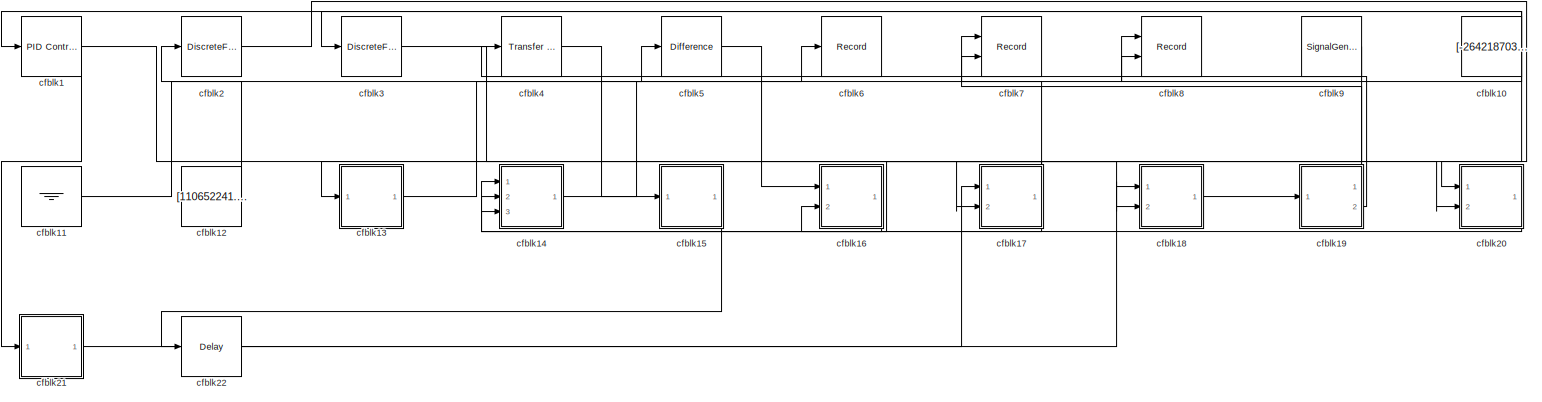
[diagram: root canvas - part 1/1, most of the canvas]
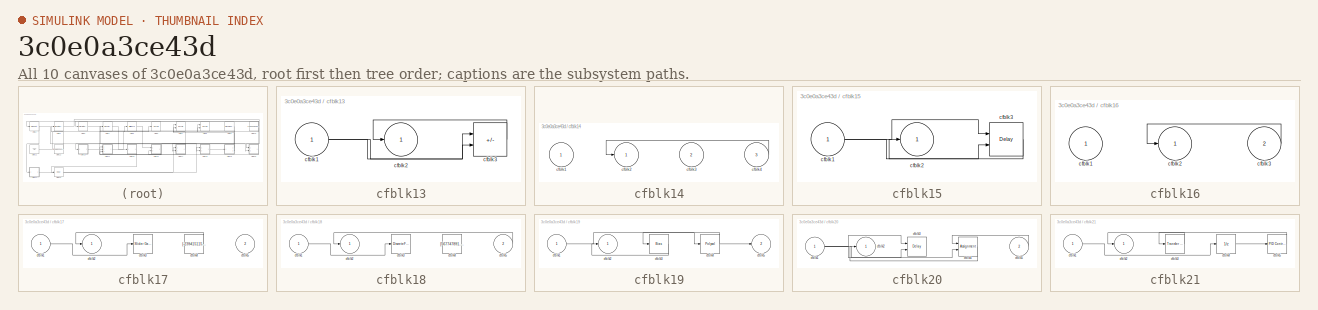
[diagram: thumbnail index - all 10 canvases of the model, root first then tree order]
MODEL slx_3c0e0a3ce43d
KIND model
CONFIG AbsTol = auto
CONFIG EnableMultiTasking = off
CONFIG FixedStep = auto
CONFIG MaxStep = auto
CONFIG MinStep = auto
CONFIG RelTol = 1e-3
CONFIG SampleTimeConstraint = Unconstrained
CONFIG SolverName = VariableStepAuto
CONFIG StartTime = 0.0
CONFIG StopTime = 10.0
BLOCK [Reference] cfblk1  REF=slpidlib/PID Controller
  Ports = [1, 1]
  SourceBlock = slpidlib/PID Controller
  SourceProductBaseCode = SL
  SourceType = PID 1dof
BLOCK [Constant] cfblk10
  SampleTime = 1
  Value = [-264218703.536812]
BLOCK [Ground] cfblk11
BLOCK [Constant] cfblk12
  SampleTime = 1
  Value = [110652241.129166]
BLOCK [SubSystem] cfblk13
  Ports = [1, 1]
  RequestExecContextInheritance = off
BLOCK [Inport] cfblk13/cfblk1
BLOCK [Outport] cfblk13/cfblk2
BLOCK [Sum] cfblk13/cfblk3
  IconShape = rectangular
  Inputs = +-
  Ports = [2, 1]
BLOCK [SubSystem] cfblk14
  Ports = [3, 1]
  RequestExecContextInheritance = off
BLOCK [Inport] cfblk14/cfblk1
BLOCK [Outport] cfblk14/cfblk2
BLOCK [Inport] cfblk14/cfblk3
  Port = 2
BLOCK [Inport] cfblk14/cfblk4
  Port = 3
BLOCK [SubSystem] cfblk15
  Ports = [1, 1]
  RequestExecContextInheritance = off
BLOCK [Inport] cfblk15/cfblk1
BLOCK [Outport] cfblk15/cfblk2
BLOCK [Delay] cfblk15/cfblk3
  InputPortMap = u0,e6
  Ports = [2, 1]
  SampleTime = 1
  ShowEnablePort = on
BLOCK [SubSystem] cfblk16
  Ports = [2, 1]
  RequestExecContextInheritance = off
BLOCK [Inport] cfblk16/cfblk1
BLOCK [Outport] cfblk16/cfblk2
BLOCK [Inport] cfblk16/cfblk3
  Port = 2
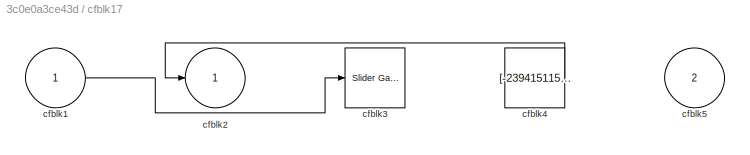
BLOCK [SubSystem] cfblk17
  Ports = [2, 1]
  RequestExecContextInheritance = off
BLOCK [Inport] cfblk17/cfblk1
BLOCK [Outport] cfblk17/cfblk2
BLOCK [Reference] cfblk17/cfblk3  REF=simulink/Math
Operations/Slider
Gain
  Ports = [1, 1]
  SourceBlock = simulink/Math\nOperations/Slider\nGain
  SourceProductBaseCode = SL
  SourceType = Slider Gain
BLOCK [Constant] cfblk17/cfblk4
  SampleTime = 1
  Value = [-239415115.744083]
BLOCK [Inport] cfblk17/cfblk5
  Port = 2
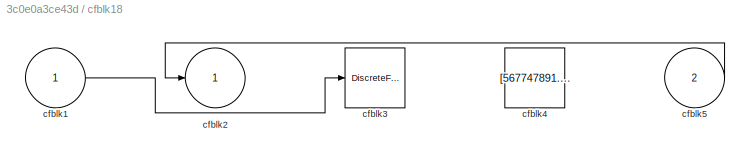
BLOCK [SubSystem] cfblk18
  Ports = [2, 1]
  RequestExecContextInheritance = off
BLOCK [Inport] cfblk18/cfblk1
BLOCK [Outport] cfblk18/cfblk2
BLOCK [DiscreteFir] cfblk18/cfblk3
  InputPortMap = u0
  OutputPortMap = o0
  Ports = [1, 1]
  SampleTime = 1
BLOCK [Constant] cfblk18/cfblk4
  SampleTime = 1
  Value = [567747891.881071]
BLOCK [Inport] cfblk18/cfblk5
  Port = 2
BLOCK [SubSystem] cfblk19
  Ports = [1, 2]
  RequestExecContextInheritance = off
BLOCK [Inport] cfblk19/cfblk1
BLOCK [Outport] cfblk19/cfblk2
BLOCK [Bias] cfblk19/cfblk3
  Bias = [377016640.359802]
  SaturateOnIntegerOverflow = off
BLOCK [Polyval] cfblk19/cfblk4
  Coefs = [ +2.081618890e-019, -1.441693666e-014, +4.719686976e-010, -8.536869453e-006, +1.621573104e-001, -8.087801117e+001 ]
BLOCK [Outport] cfblk19/cfblk5
  Port = 2
BLOCK [DiscreteFilter] cfblk2
  InputPortMap = u0
  Ports = [1, 1]
  SampleTime = 1
BLOCK [SubSystem] cfblk20
  Ports = [2, 1]
  RequestExecContextInheritance = off
BLOCK [Inport] cfblk20/cfblk1
BLOCK [Outport] cfblk20/cfblk2
BLOCK [Delay] cfblk20/cfblk3
  InputPortMap = u0,e6
  Ports = [2, 1]
  SampleTime = 1
  ShowEnablePort = on
BLOCK [Assignment] cfblk20/cfblk4
  DiagnosticForDimensions = Warning
  IndexOptions = Index vector (dialog)
  Indices = 1
  OutputSizes = 1
  Ports = [2, 1]
BLOCK [Inport] cfblk20/cfblk5
  Port = 2
BLOCK [SubSystem] cfblk21
  Ports = [1, 1]
  RequestExecContextInheritance = off
BLOCK [Inport] cfblk21/cfblk1
BLOCK [Outport] cfblk21/cfblk2
BLOCK [Reference] cfblk21/cfblk3  REF=simulink/Discrete/Transfer Fcn
Real Zero
  Ports = [1, 1]
  SourceBlock = simulink/Discrete/Transfer Fcn\nReal Zero
  SourceProductBaseCode = SL
  SourceType = Transfer Fcn Real Zero
BLOCK [UnitDelay] cfblk21/cfblk4
  HasFrameUpgradeWarning = on
BLOCK [Reference] cfblk21/cfblk5  REF=slpidlib/PID Controller
  Ports = [1, 1]
  SourceBlock = slpidlib/PID Controller
  SourceProductBaseCode = SL
  SourceType = PID 1dof
BLOCK [Delay] cfblk22
  InputPortMap = u0
  Ports = [1, 1]
  SampleTime = 1
BLOCK [DiscreteFir] cfblk3
  InputPortMap = u0
  OutputPortMap = o0
  Ports = [1, 1]
  SampleTime = 1
BLOCK [Reference] cfblk4  REF=simulink/Discrete/Transfer Fcn
First Order
  Ports = [1, 1]
  SourceBlock = simulink/Discrete/Transfer Fcn\nFirst Order
  SourceProductBaseCode = SL
  SourceType = First Order Transfer Fcn
BLOCK [Reference] cfblk5  REF=simulink/Discrete/Difference
  Ports = [1, 1]
  SourceBlock = simulink/Discrete/Difference
  SourceProductBaseCode = SL
  SourceType = Difference
BLOCK [Record] cfblk6
  FileSettingsInternal = {"entries":[{"content":{"excelSettings":{"content":{},"type":"Streamout.ExcelSettings"}},"type":"Streamout.FileSettingStorage","uuid":"0ebc6f11-7c4c-42d4-a33b-32ea3813df65"}],"packageUris":["http://schema.mathworks.com/mf0/streamout_blocks/R2020a"],"version":"1.0"}
  Ports = [1]
  SignalsInternal = {"entries":[{"content":{"signals":[{"content":{"blockPath":["sampleModel177/cfblk6"],"channel":[],"dimensions":[1],"domain":"sampleModel177/cfblk6","lineColor":"#64d413","plots":[1],"port":1,"sid":[""],"signalID":6591,"signalName":"cfblk13"},"type":"RecordBlkView.Signal","uuid":"74cd25fa-234e-4c83-8681-648e250d4b62"}]},"type":"RecordBlkView.InputSignals","uuid":"8dd71eb6-9d43-4b10-9631-c5556753376...<+95ch>
  VisualizationBindings = {"sparklinesplugin":{"info":[{"bindingParametersList":[],"subplotID":1}]}}
BLOCK [Record] cfblk7
  CompatibilityTag = XY
  FileSettingsInternal = {"entries":[{"content":{"excelSettings":{"content":{},"type":"Streamout.ExcelSettings"}},"type":"Streamout.FileSettingStorage","uuid":"c779718b-8efb-43b8-aa6c-1f9dd330889a"}],"packageUris":["http://schema.mathworks.com/mf0/streamout_blocks/R2020a"],"version":"1.0"}
  Layout = [1 1]
  Ports = [2]
  SignalsInternal = {"entries":[{"content":{"signals":[{"content":{"blockPath":["sampleModel177/cfblk7"],"channel":[],"dimensions":[1],"domain":"sampleModel177/cfblk7","lineColor":"#a2142f","plots":[1],"port":1,"sid":[""],"signalID":6595,"signalName":"cfblk19:1"},"type":"RecordBlkView.Signal","uuid":"56649da3-ccc1-47a4-a2f4-0e88634361af"},{"content":{"blockPath":["sampleModel177/cfblk7"],"channel":[],"dimensions":[1]...<+381ch>
  VisualizationBindings = {"xyplotplugin":{"info":[{"series":[{"bindingParametersList":[{"parameter":"X-Axis","signalID":6595,"signalName":"cfblk19:1"},{"parameter":"Y-Axis","signalID":6599,"signalName":"cfblk17"}],"seriesID":63374}],"subplotID":1}]}}
BLOCK [Record] cfblk8
  CompatibilityTag = XY
  FileSettingsInternal = {"entries":[{"content":{"excelSettings":{"content":{},"type":"Streamout.ExcelSettings"}},"type":"Streamout.FileSettingStorage","uuid":"5b5474de-6a5c-4531-8fda-7801034ded8d"}],"packageUris":["http://schema.mathworks.com/mf0/streamout_blocks/R2020a"],"version":"1.0"}
  Layout = [1 1]
  Ports = [2]
  SignalsInternal = {"entries":[{"content":{"signals":[{"content":{"blockPath":["sampleModel177/cfblk8"],"channel":[],"dimensions":[1],"domain":"sampleModel177/cfblk8","lineColor":"#a2142f","plots":[1],"port":1,"sid":[""],"signalID":6603,"signalName":"cfblk14"},"type":"RecordBlkView.Signal","uuid":"57d078b6-0b98-4c03-9e4f-bcd5c5fff5f0"},{"content":{"blockPath":["sampleModel177/cfblk8"],"channel":[],"dimensions":[1],"...<+379ch>
  VisualizationBindings = {"xyplotplugin":{"info":[{"series":[{"bindingParametersList":[{"parameter":"X-Axis","signalID":6603,"signalName":"cfblk14"},{"parameter":"Y-Axis","signalID":6607,"signalName":"cfblk10"}],"seriesID":1132}],"subplotID":1}]}}
BLOCK [SignalGenerator] cfblk9
  Amplitude = [256340039.339613]
  Ports = [0, 1]
NET cfblk10:1 -> cfblk17:2, cfblk1:1, cfblk3:1, cfblk8:2
LINE cfblk11:1 -> cfblk5:1
LINE cfblk12:1 -> cfblk2:1
NET cfblk13/cfblk1:1 -> cfblk13/cfblk3:1, cfblk13/cfblk3:2
LINE cfblk13/cfblk3:1 -> cfblk13/cfblk2:1
LINE cfblk13:1 -> cfblk6:1
LINE cfblk14/cfblk4:1 -> cfblk14/cfblk2:1
LINE cfblk14:1 -> cfblk8:1
NET cfblk15/cfblk1:1 -> cfblk15/cfblk3:1, cfblk15/cfblk3:2
LINE cfblk15/cfblk3:1 -> cfblk15/cfblk2:1
LINE cfblk15:1 -> cfblk22:1
LINE cfblk16/cfblk3:1 -> cfblk16/cfblk2:1
LINE cfblk16:1 -> cfblk14:3
LINE cfblk17/cfblk1:1 -> cfblk17/cfblk3:1
LINE cfblk17/cfblk4:1 -> cfblk17/cfblk2:1
NET cfblk17:1 -> cfblk13:1, cfblk14:2, cfblk7:2
LINE cfblk18/cfblk1:1 -> cfblk18/cfblk3:1
LINE cfblk18/cfblk5:1 -> cfblk18/cfblk2:1
LINE cfblk18:1 -> cfblk19:1
LINE cfblk19/cfblk1:1 -> cfblk19/cfblk4:1
LINE cfblk19/cfblk3:1 -> cfblk19/cfblk2:1
NET cfblk19/cfblk4:1 -> cfblk19/cfblk3:1, cfblk19/cfblk5:1
LINE cfblk19:1 -> cfblk7:1
LINE cfblk19:2 -> cfblk4:1
NET cfblk1:1 -> cfblk18:2, cfblk21:1
NET cfblk20/cfblk1:1 -> cfblk20/cfblk3:1, cfblk20/cfblk3:2, cfblk20/cfblk4:2
LINE cfblk20/cfblk4:1 -> cfblk20/cfblk2:1
LINE cfblk20/cfblk5:1 -> cfblk20/cfblk4:1
LINE cfblk20:1 -> cfblk16:2
LINE cfblk21/cfblk1:1 -> cfblk21/cfblk4:1
LINE cfblk21/cfblk3:1 -> cfblk21/cfblk2:1
LINE cfblk21/cfblk4:1 -> cfblk21/cfblk5:1
LINE cfblk21/cfblk5:1 -> cfblk21/cfblk3:1
LINE cfblk21:1 -> cfblk17:1
LINE cfblk22:1 -> cfblk18:1
LINE cfblk2:1 -> cfblk20:1
LINE cfblk3:1 -> cfblk20:2
LINE cfblk4:1 -> cfblk15:1
LINE cfblk5:1 -> cfblk16:1
LINE cfblk9:1 -> cfblk14:1
note: NET lines group one-source signal fan-out (src -> all destinations, sorted); 1:1 wires keep LINE
